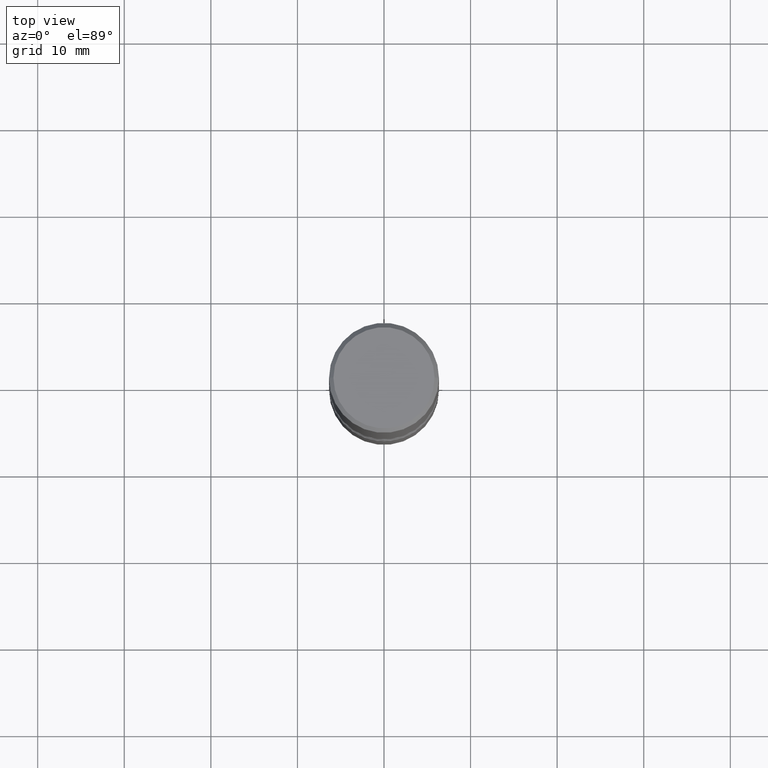
[diagram: clean part render]
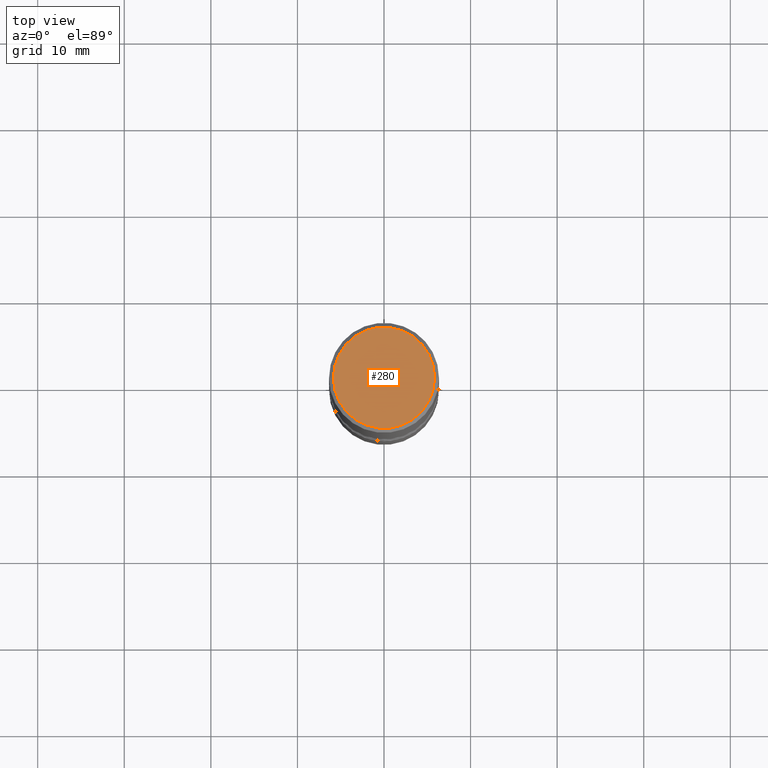
[diagram: same view with one face highlighted and labeled with its STEP entity id]
A machine part, top view. The second image highlights one B-rep face of the part: STEP entity #280.
In plain terms, the highlighted planar face has unit normal (0, -0, -1).
Its self-contained STEP definition (entity closure, byte-faithful):
#16 = DIRECTION ( 'NONE',  ( 1.000000000000000000, -6.982962677686265922E-15, 4.875813741439089685E-29 ) ) ;
#44 = DIRECTION ( 'NONE',  ( 1.000000000000000000, -6.982962677686265922E-15, 4.875813741439089685E-29 ) ) ;
#72 = EDGE_LOOP ( 'NONE', ( #192, #244 ) ) ;
#90 = AXIS2_PLACEMENT_3D ( 'NONE', #273, #404, #16 ) ;
#95 = DIRECTION ( 'NONE',  ( -1.000000000000000000, 6.982962677686265922E-15, -4.876176775795935793E-29 ) ) ;
#133 = CARTESIAN_POINT ( 'NONE',  ( -0.2300000000000004818, 1.640996229256275675E-15, -1.707404996041300040E-17 ) ) ;
#192 = ORIENTED_EDGE ( 'NONE', *, *, #369, .T. ) ;
#211 = DIRECTION ( 'NONE',  ( 2.438088387897960049E-29, -3.491481338843145188E-15, -1.000000000000000000 ) ) ;
#214 = CARTESIAN_POINT ( 'NONE',  ( 4.175405657340879278E-46, -5.961372681521788801E-32, -1.707404996040164512E-17 ) ) ;
#220 = PLANE ( 'NONE',  #498 ) ;
#244 = ORIENTED_EDGE ( 'NONE', *, *, #515, .T. ) ;
#245 = VERTEX_POINT ( 'NONE', #353 ) ;
#273 = CARTESIAN_POINT ( 'NONE',  ( 4.175405657340879278E-46, -5.961372681521788801E-32, -1.707404996040164512E-17 ) ) ;
#280 = ADVANCED_FACE ( 'NONE', ( #433 ), #220, .F. ) ;
#353 = CARTESIAN_POINT ( 'NONE',  ( 0.2300000000000004818, -1.681434332853602167E-15, -1.707404996039015117E-17 ) ) ;
#369 = EDGE_CURVE ( 'NONE', #503, #245, #547, .T. ) ;
#390 = CARTESIAN_POINT ( 'NONE',  ( 1.606081415867844617E-15, 0.2300000000000004818, -8.115777329141259230E-16 ) ) ;
#404 = DIRECTION ( 'NONE',  ( -2.445468806185136597E-29, 3.491481338843145583E-15, 1.000000000000000000 ) ) ;
#432 = DIRECTION ( 'NONE',  ( -2.445468806185136597E-29, 3.491481338843145583E-15, 1.000000000000000000 ) ) ;
#433 = FACE_OUTER_BOUND ( 'NONE', #72, .T. ) ;
#498 = AXIS2_PLACEMENT_3D ( 'NONE', #390, #211, #95 ) ;
#503 = VERTEX_POINT ( 'NONE', #133 ) ;
#515 = EDGE_CURVE ( 'NONE', #245, #503, #524, .T. ) ;
#524 = CIRCLE ( 'NONE', #555, 0.2300000000000004818 ) ;
#547 = CIRCLE ( 'NONE', #90, 0.2300000000000004818 ) ;
#555 = AXIS2_PLACEMENT_3D ( 'NONE', #214, #432, #44 ) ;